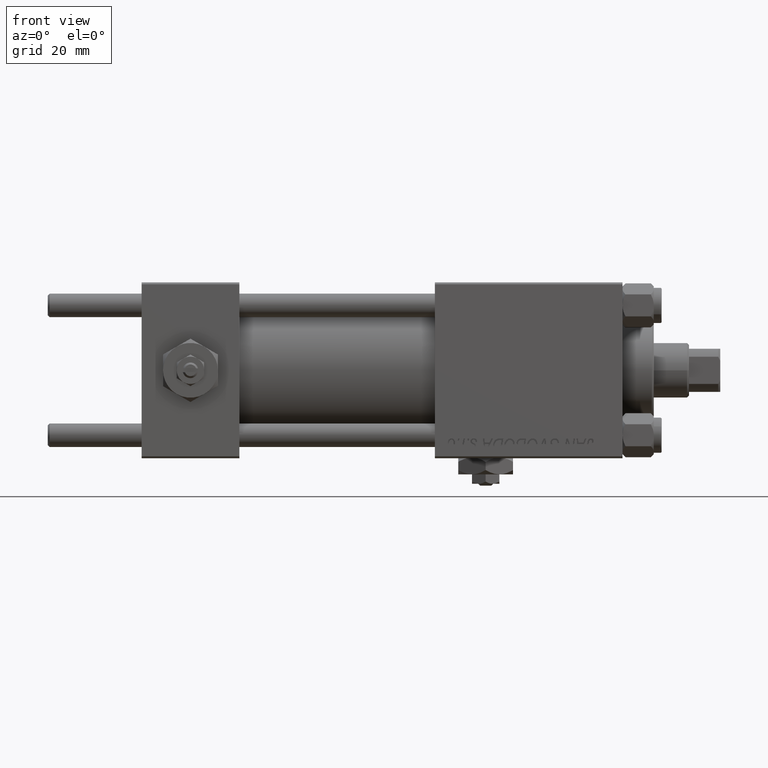
[diagram: clean part render]
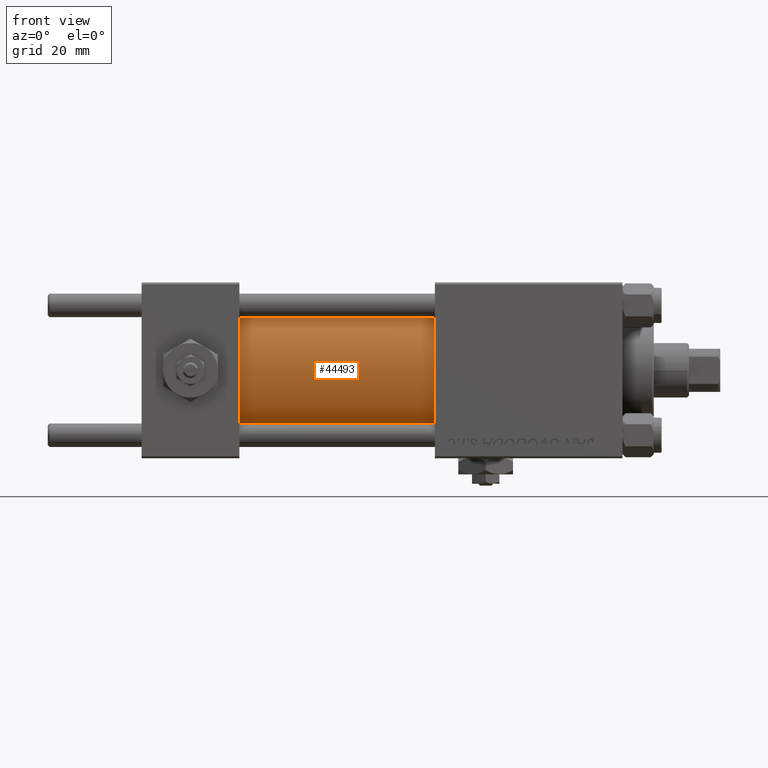
[diagram: same view with one face highlighted and labeled with its STEP entity id]
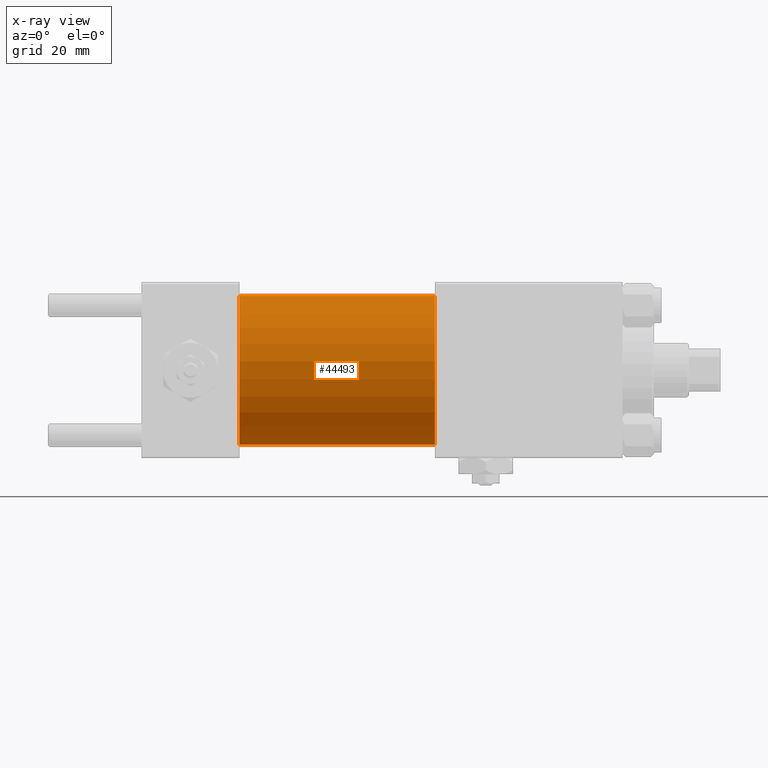
[diagram: x-ray of the same camera — body ghosted, the highlighted face saturated]
A machine part, front view. The second image highlights one B-rep face of the part: STEP entity #44493.
The next image is the same camera in x-ray: the body ghosted, the highlighted face saturated — about 0% of this face is hidden behind the body in this view.
In plain terms, the highlighted cylindrical surface (partial cylindrical patch) has radius 19 mm, axis along (-1, -0, -0).
Its self-contained STEP definition (entity closure, byte-faithful):
#218 = ORIENTED_EDGE ( 'NONE', *, *, #24668, .F. ) ;
#497 = VERTEX_POINT ( 'NONE', #44422 ) ;
#704 = ORIENTED_EDGE ( 'NONE', *, *, #23291, .T. ) ;
#1573 = EDGE_LOOP ( 'NONE', ( #42292, #218, #6307, #704 ) ) ;
#4964 = DIRECTION ( 'NONE',  ( -1.000000000000000000, -0.000000000000000000, -0.000000000000000000 ) ) ;
#6307 = ORIENTED_EDGE ( 'NONE', *, *, #48598, .T. ) ;
#8858 = AXIS2_PLACEMENT_3D ( 'NONE', #43334, #18470, #26340 ) ;
#9751 = DIRECTION ( 'NONE',  ( 1.000000000000000000, -0.000000000000000000, 0.000000000000000000 ) ) ;
#9845 = CARTESIAN_POINT ( 'NONE',  ( 75.00000000000001421, 2.326828918379970970E-15, -19.00000000000000000 ) ) ;
#13139 = CARTESIAN_POINT ( 'NONE',  ( 25.00000000000000000, 0.000000000000000000, 19.00000000000000000 ) ) ;
#15074 = CARTESIAN_POINT ( 'NONE',  ( 25.00000000000000000, 2.326828918379970970E-15, -19.00000000000000000 ) ) ;
#15268 = DIRECTION ( 'NONE',  ( 1.000000000000000000, 0.000000000000000000, 0.000000000000000000 ) ) ;
#18470 = DIRECTION ( 'NONE',  ( -1.000000000000000000, -0.000000000000000000, -0.000000000000000000 ) ) ;
#19462 = CARTESIAN_POINT ( 'NONE',  ( 75.00000000000001421, 0.000000000000000000, 0.000000000000000000 ) ) ;
#21036 = AXIS2_PLACEMENT_3D ( 'NONE', #45645, #9751, #21819 ) ;
#21074 = AXIS2_PLACEMENT_3D ( 'NONE', #19462, #15268, #27344 ) ;
#21104 = VERTEX_POINT ( 'NONE', #15074 ) ;
#21819 = DIRECTION ( 'NONE',  ( 0.000000000000000000, 0.000000000000000000, 1.000000000000000000 ) ) ;
#23291 = EDGE_CURVE ( 'NONE', #31139, #21104, #38630, .T. ) ;
#24668 = EDGE_CURVE ( 'NONE', #41945, #497, #43666, .T. ) ;
#26340 = DIRECTION ( 'NONE',  ( 0.000000000000000000, 0.000000000000000000, 1.000000000000000000 ) ) ;
#27287 = EDGE_CURVE ( 'NONE', #497, #21104, #45738, .T. ) ;
#27344 = DIRECTION ( 'NONE',  ( 0.000000000000000000, 0.000000000000000000, -1.000000000000000000 ) ) ;
#30775 = FACE_OUTER_BOUND ( 'NONE', #1573, .T. ) ;
#31139 = VERTEX_POINT ( 'NONE', #13139 ) ;
#31605 = VECTOR ( 'NONE', #4964, 1000.000000000000000 ) ;
#33693 = DIRECTION ( 'NONE',  ( -1.000000000000000000, -0.000000000000000000, -0.000000000000000000 ) ) ;
#34449 = CYLINDRICAL_SURFACE ( 'NONE', #8858, 19.00000000000000000 ) ;
#38630 = CIRCLE ( 'NONE', #21036, 19.00000000000000000 ) ;
#40862 = LINE ( 'NONE', #41120, #31605 ) ;
#41120 = CARTESIAN_POINT ( 'NONE',  ( 75.00000000000001421, 0.000000000000000000, 19.00000000000000000 ) ) ;
#41238 = VECTOR ( 'NONE', #33693, 1000.000000000000000 ) ;
#41945 = VERTEX_POINT ( 'NONE', #50111 ) ;
#42292 = ORIENTED_EDGE ( 'NONE', *, *, #27287, .F. ) ;
#43334 = CARTESIAN_POINT ( 'NONE',  ( 75.00000000000001421, 0.000000000000000000, 0.000000000000000000 ) ) ;
#43666 = CIRCLE ( 'NONE', #21074, 19.00000000000000000 ) ;
#44422 = CARTESIAN_POINT ( 'NONE',  ( 75.00000000000001421, 2.326828918379970970E-15, -19.00000000000000000 ) ) ;
#44493 = ADVANCED_FACE ( 'NONE', ( #30775 ), #34449, .T. ) ;
#45645 = CARTESIAN_POINT ( 'NONE',  ( 25.00000000000000000, 0.000000000000000000, 0.000000000000000000 ) ) ;
#45738 = LINE ( 'NONE', #9845, #41238 ) ;
#48598 = EDGE_CURVE ( 'NONE', #41945, #31139, #40862, .T. ) ;
#50111 = CARTESIAN_POINT ( 'NONE',  ( 75.00000000000001421, 0.000000000000000000, 19.00000000000000000 ) ) ;